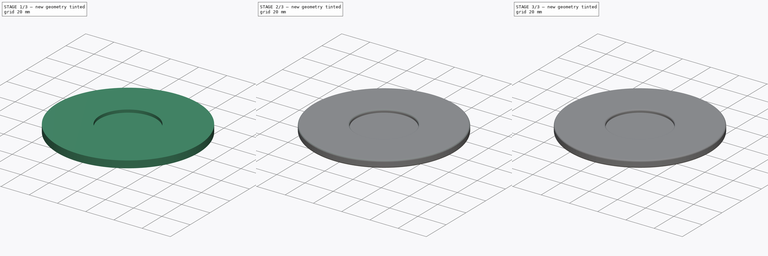
[diagram: build sequence overview — one tinted view per stage of 3, left to right]
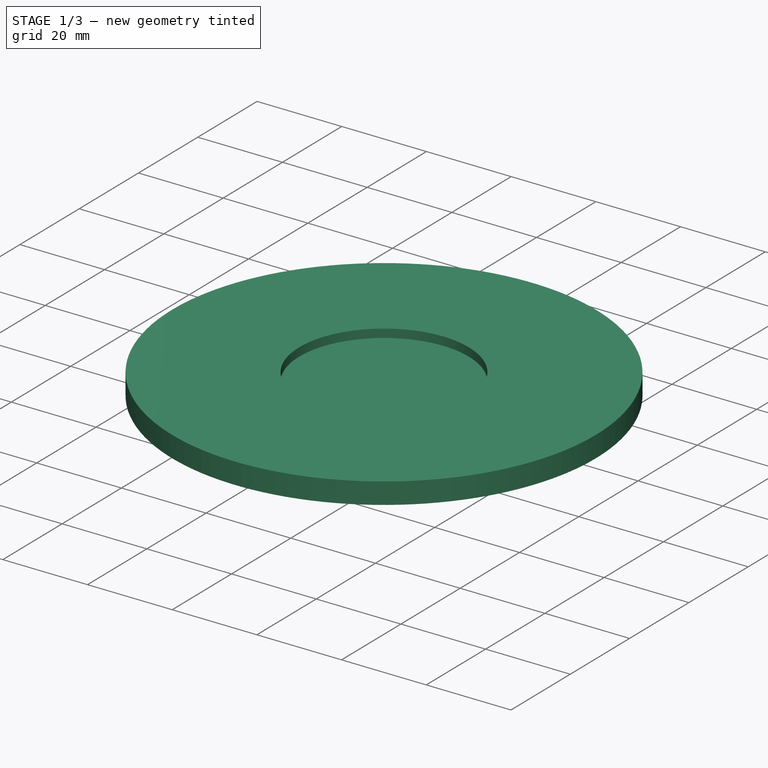
[diagram: stage 1 of 3 — iso view after this stage's code; geometry added in this stage tinted green]
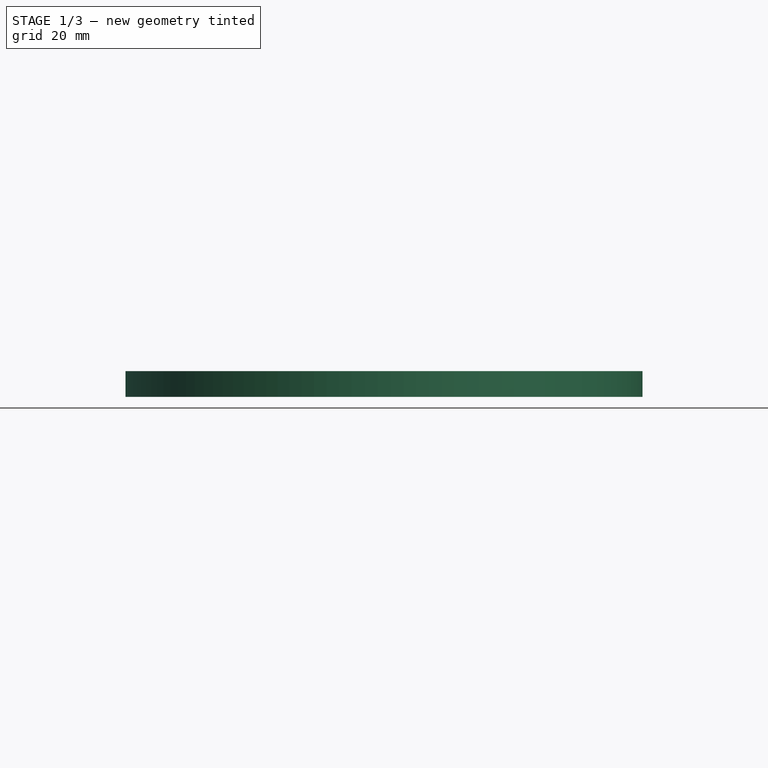
[diagram: stage 1 of 3 — front view after this stage's code; geometry added in this stage tinted green]
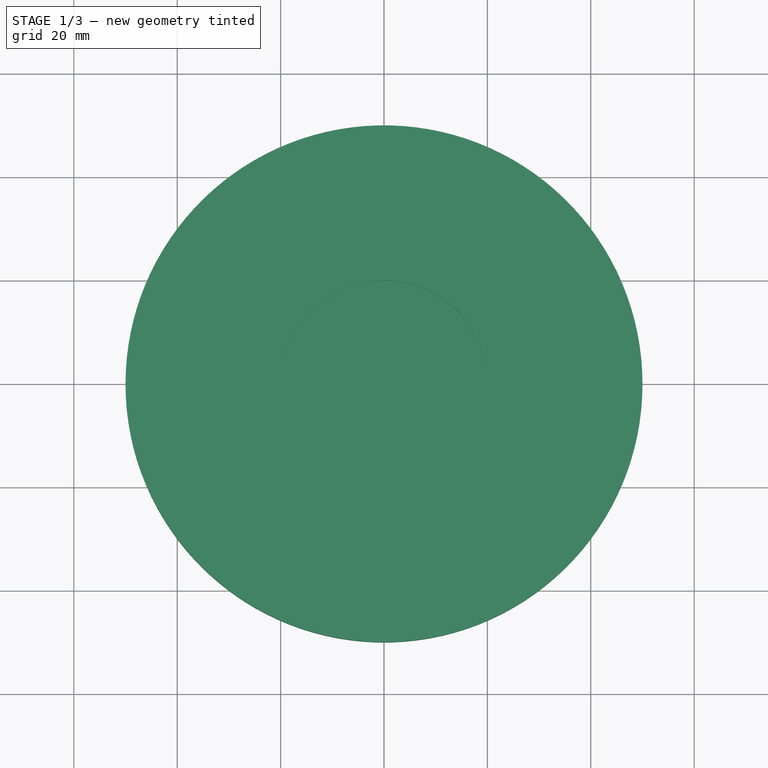
[diagram: stage 1 of 3 — top view after this stage's code; geometry added in this stage tinted green]
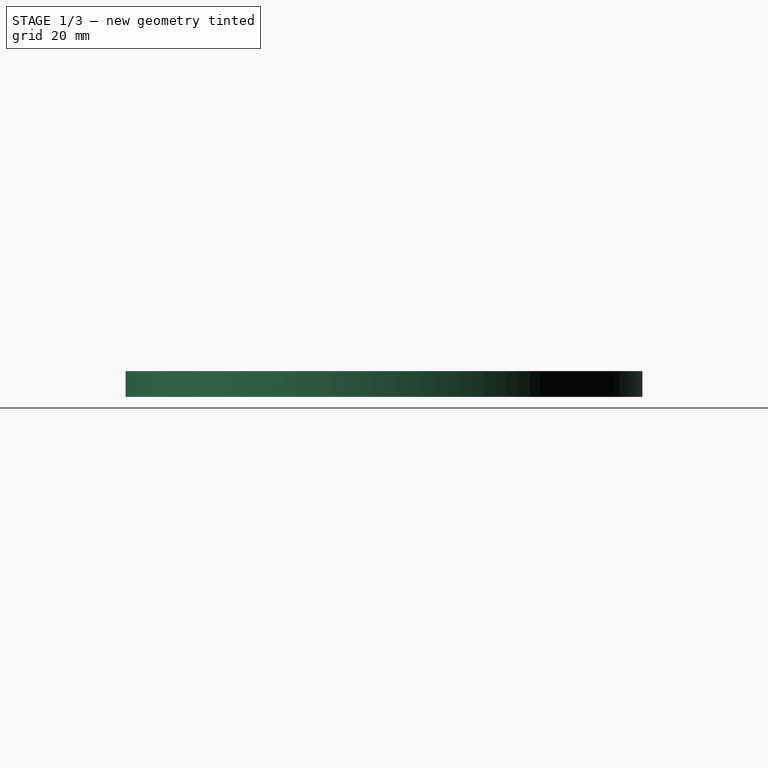
[diagram: stage 1 of 3 — right view after this stage's code; geometry added in this stage tinted green]
FCSTD DOCUMENT  (FreeCAD 0.19R24267 +148 (Git))
Label: poker_chips
License: All rights reserved
LicenseURL: http://en.wikipedia.org/wiki/All_rights_reserved
objects: Sketcher::SketchObject×4, PartDesign::Pocket×3, PartDesign::Fillet×3, Spreadsheet::Sheet×1, PartDesign::Pad×1, PartDesign::PolarPattern×1, PartDesign::Body×1
note: 20 computed .brp shape members not serialized (recipe doc carries the construction recipe); baked Part::Feature solids carry a one-line shape summary decoded from their .brp

FEATURE [Sketcher::SketchObject] Sketch
  FullyConstrained = true
  MapMode = 5
  Support = -> [XY_Plane]
  expr: Constraints[1] = <<DesignParameters>>.chip_diameter
  sketch-geometry (1):
    g0: Circle CenterX=0 CenterY=0 CenterZ=0 NormalX=0 NormalY=0 NormalZ=1 AngleXU=0 Radius=50
  constraints (2):
    c: Coincident(g0,g-1)
    c: Radius(g0) = 50
FEATURE [Spreadsheet::Sheet] Spreadsheet  label="DesignParameters"
  cells = A2=Diameter; B2(chip_diameter)=50; A3=Lenght; B3(chip_length)=5; A4=InnerDiameter; B4(chip_inner_diameter)=20
FEATURE [PartDesign::Pad] Pad
  Direction = (1,1,1)
  Length = 5
  Length2 = 100
  Profile = -> Sketch
  Type = 0
  expr: Length = <<DesignParameters>>.chip_length
FEATURE [Sketcher::SketchObject] Sketch001
  FullyConstrained = true
  MapMode = 5
  Placement = pos=(0,0,5) rot=(0,0,1;0rad)
  Support = -> [Pad]
  expr: Constraints[1] = <<DesignParameters>>.chip_inner_diameter
  sketch-geometry (1):
    g0: Circle CenterX=0 CenterY=0 CenterZ=0 NormalX=0 NormalY=0 NormalZ=1 AngleXU=0 Radius=20
  constraints (2):
    c: Coincident(g0,g-1)
    c: Radius(g0) = 20
FEATURE [PartDesign::Pocket] Pocket  label="HoleFront"
  BaseFeature = -> Pad
  Length = 2
  Length2 = 100
  Profile = -> Sketch001
  Type = 0
FEATURE [Sketcher::SketchObject] Sketch002
  FullyConstrained = true
  MapMode = 5
  Placement = pos=(0,0,0) rot=(1,0,0;3.14159rad)
  Support = -> [Pocket]
  expr: Constraints[1] = <<DesignParameters>>.chip_inner_diameter
  sketch-geometry (1):
    g0: Circle CenterX=0 CenterY=0 CenterZ=0 NormalX=0 NormalY=0 NormalZ=1 AngleXU=0 Radius=20
  constraints (2):
    c: Coincident(g0,g-1)
    c: Radius(g0) = 20
FEATURE [PartDesign::Pocket] Pocket001  label="HoleBack"
  BaseFeature = -> Pocket
  Length = 2
  Length2 = 100
  Profile = -> Sketch002
  Type = 0
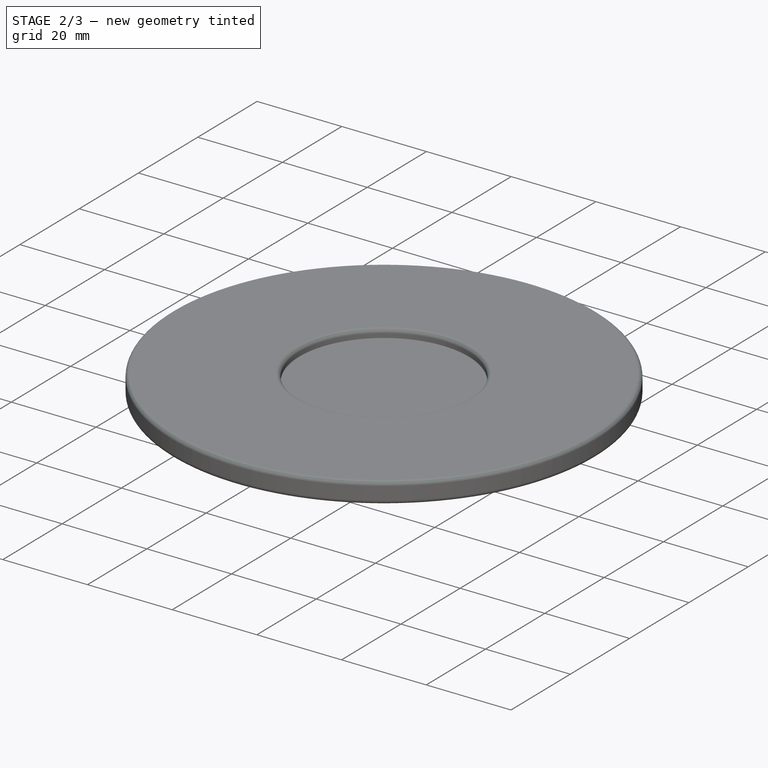
[diagram: stage 2 of 3 — iso view after this stage's code; geometry added in this stage tinted green]
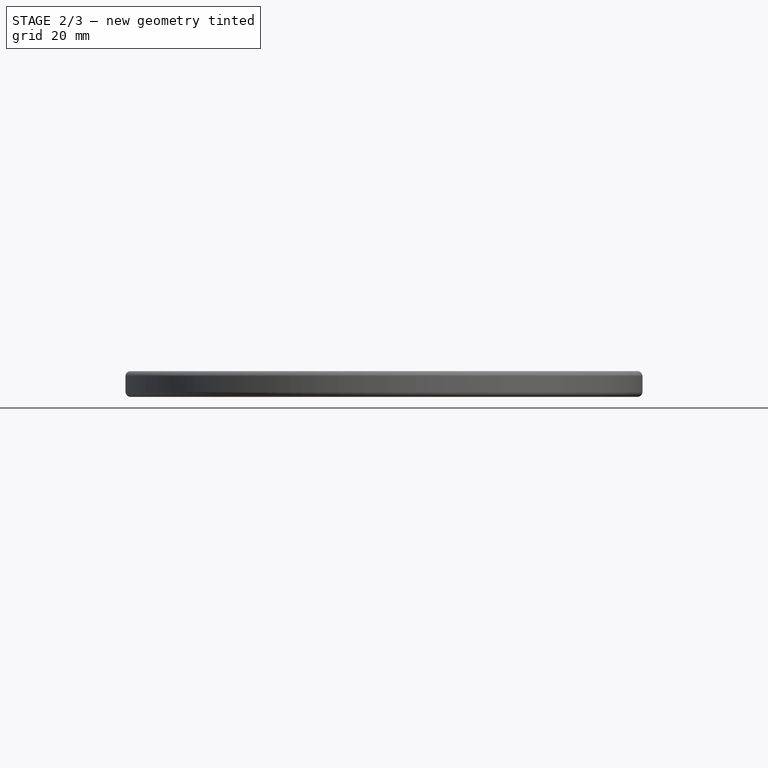
[diagram: stage 2 of 3 — front view after this stage's code; geometry added in this stage tinted green]
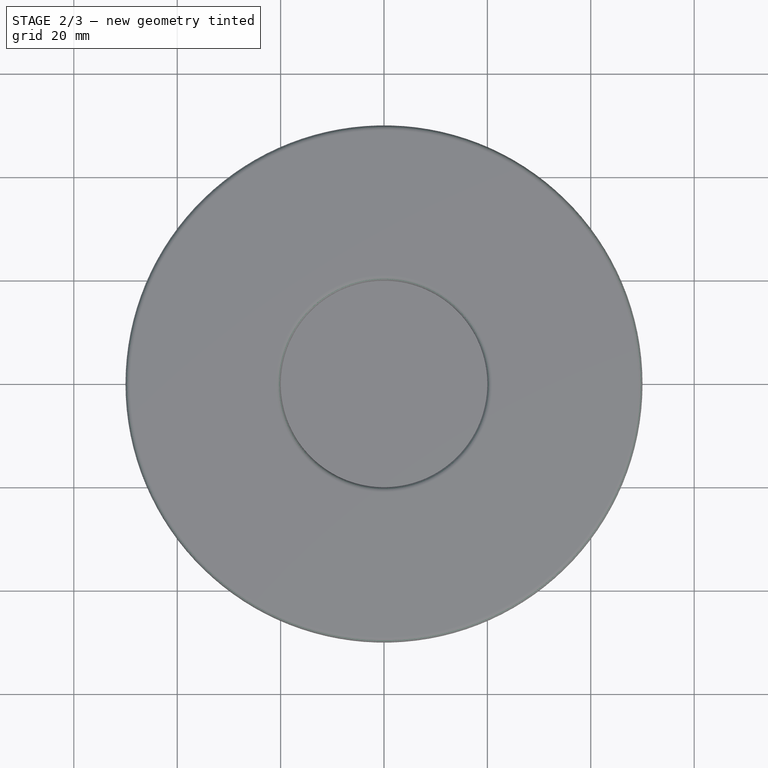
[diagram: stage 2 of 3 — top view after this stage's code; geometry added in this stage tinted green]
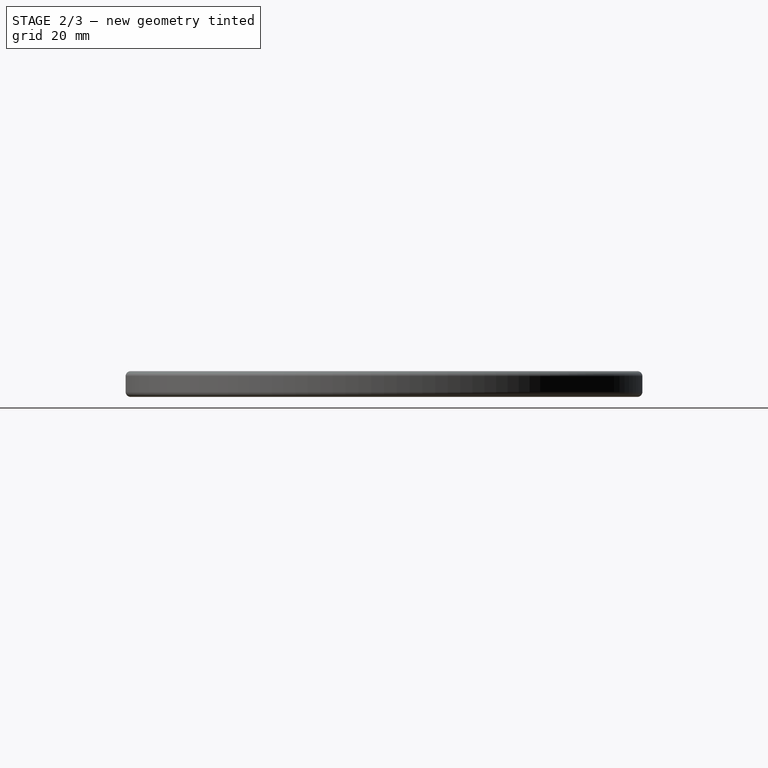
[diagram: stage 2 of 3 — right view after this stage's code; geometry added in this stage tinted green]
FEATURE [PartDesign::Fillet] Fillet  label="Round2"
  Base = -> Pocket001 [Edge2,Edge3]
  BaseFeature = -> Pocket001
  Radius = 1
  SupportTransform = false
FEATURE [PartDesign::Fillet] Fillet001  label="Round"
  Base = -> Fillet [Edge8,Edge9]
  BaseFeature = -> Fillet
  Radius = 1
  SupportTransform = false
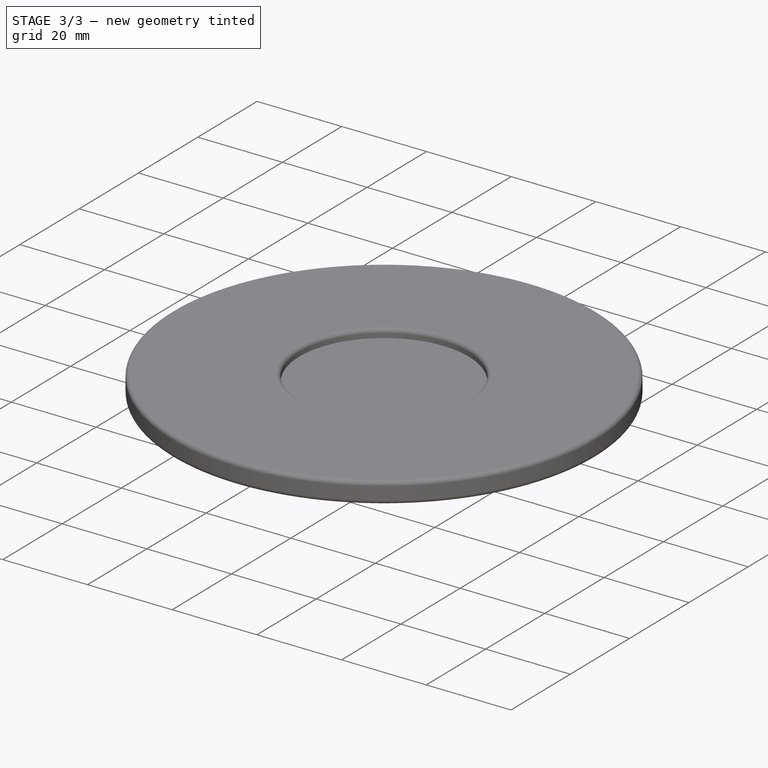
[diagram: stage 3 of 3 — iso view after this stage's code; geometry added in this stage tinted green]
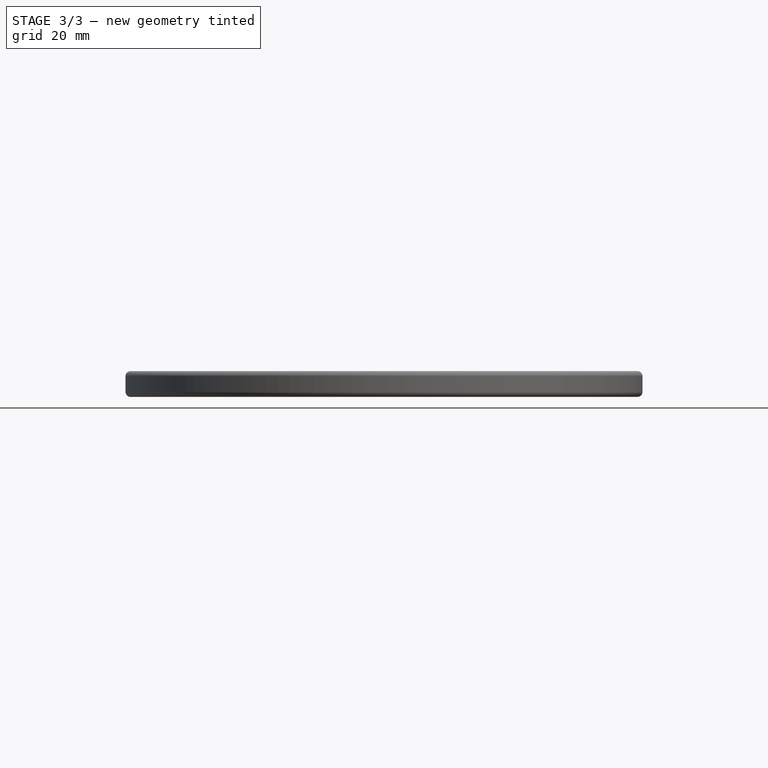
[diagram: stage 3 of 3 — front view after this stage's code; geometry added in this stage tinted green]
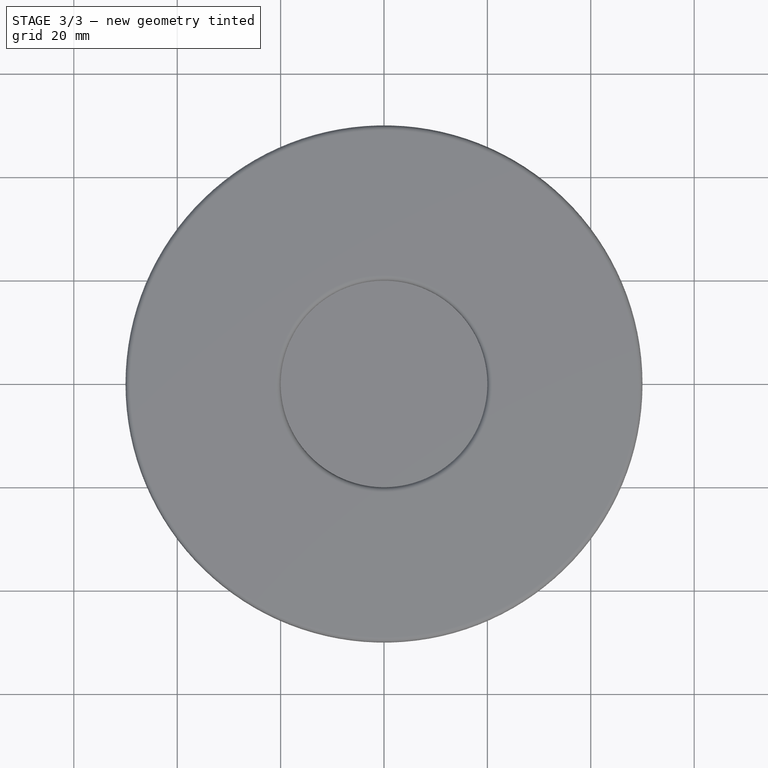
[diagram: stage 3 of 3 — top view after this stage's code; geometry added in this stage tinted green]
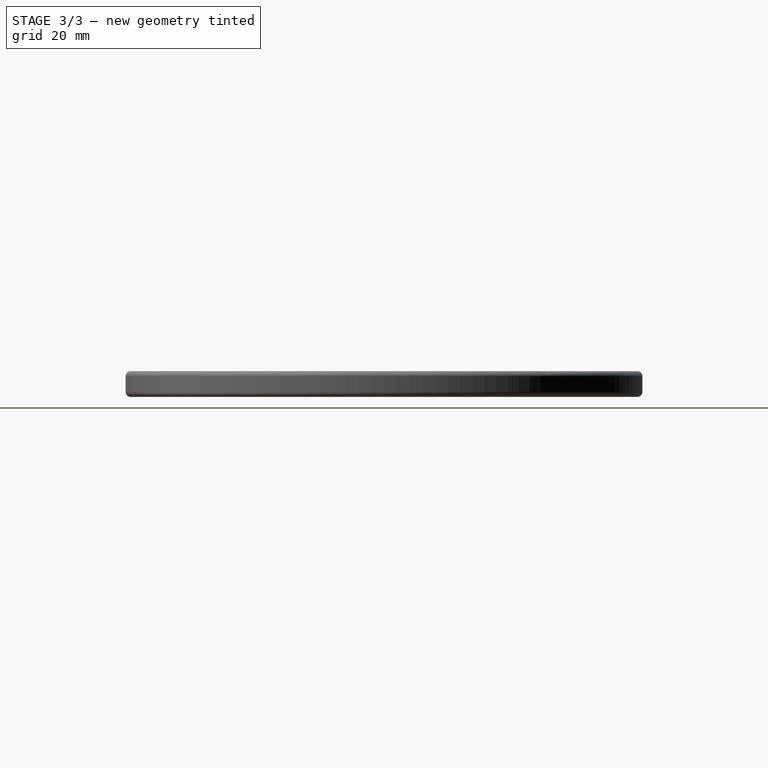
[diagram: stage 3 of 3 — right view after this stage's code; geometry added in this stage tinted green]
FEATURE [Sketcher::SketchObject] Sketch003
  FullyConstrained = false
  MapMode = 5
  Placement = pos=(0,0,0) rot=(1,0,0;3.14159rad)
  Support = -> [Fillet001]
  sketch-geometry (4):
    g0: ArcOfCircle CenterX=0 CenterY=0 CenterZ=0 NormalX=0 NormalY=0 NormalZ=1 AngleXU=0 Radius=44.8924 StartAngle=0.838741 EndAngle=1.30009
    g1: ArcOfCircle CenterX=0 CenterY=0 CenterZ=0 NormalX=0 NormalY=0 NormalZ=1 AngleXU=0 Radius=26.9316 StartAngle=0.925301 EndAngle=1.24758
    g2: LineSegment StartX=8.55397 StartY=25.5371 StartZ=0 EndX=12.0048 EndY=43.2575 EndZ=0
    g3: LineSegment StartX=16.2019 StartY=21.513 StartZ=0 EndX=30.0061 EndY=33.391 EndZ=0
  constraints (6):
    c: Coincident(g0,g-1)
    c: Coincident(g1,g0)
    c: Coincident(g2,g1)
    c: Coincident(g2,g0)
    c: Coincident(g3,g1)
    c: Coincident(g3,g0)
FEATURE [PartDesign::Pocket] Pocket002
  BaseFeature = -> Fillet001
  Length = 1
  Length2 = 100
  Profile = -> Sketch003
  Type = 0
FEATURE [PartDesign::Fillet] Fillet002
  Base = -> Pocket002 [Edge5,Edge3,Edge2,Edge4]
  BaseFeature = -> Pocket002
  Radius = 0.5
  SupportTransform = false
FEATURE [PartDesign::PolarPattern] PolarPattern
  Angle = 360
  Axis = -> Z_Axis
  BaseFeature = -> Fillet002
  Occurrences = 6
  Originals = -> [Fillet002]
FEATURE [PartDesign::Body] Body
  Group = -> [Sketch,Pad,Sketch001,Pocket,Sketch002,Pocket001,Fillet,Fillet001,Sketch003,Pocket002,Fillet002,PolarPattern]
  Origin = -> Origin
  Tip = -> PolarPattern
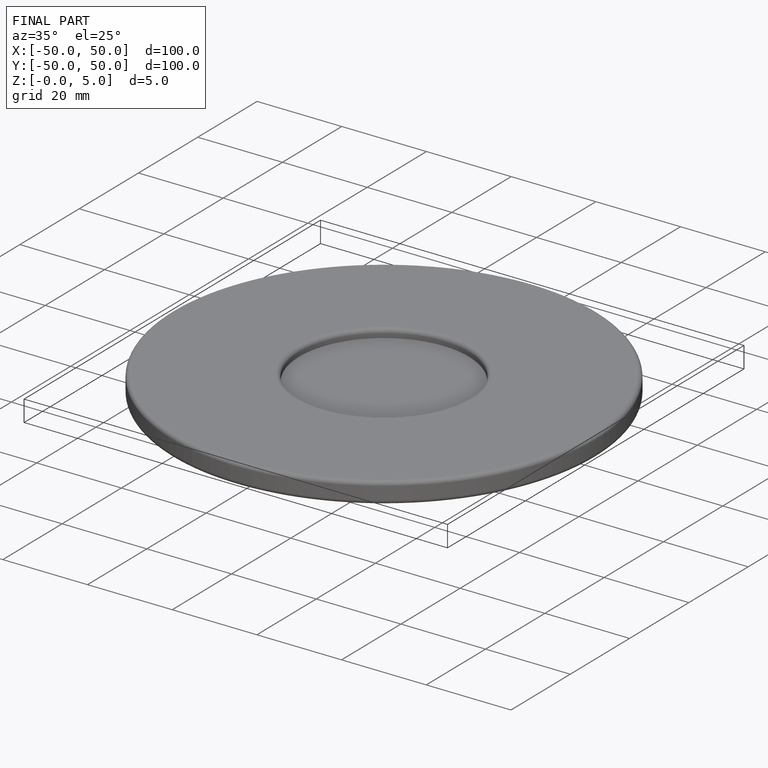
[diagram: finished part — iso view with bounding-box wireframe]
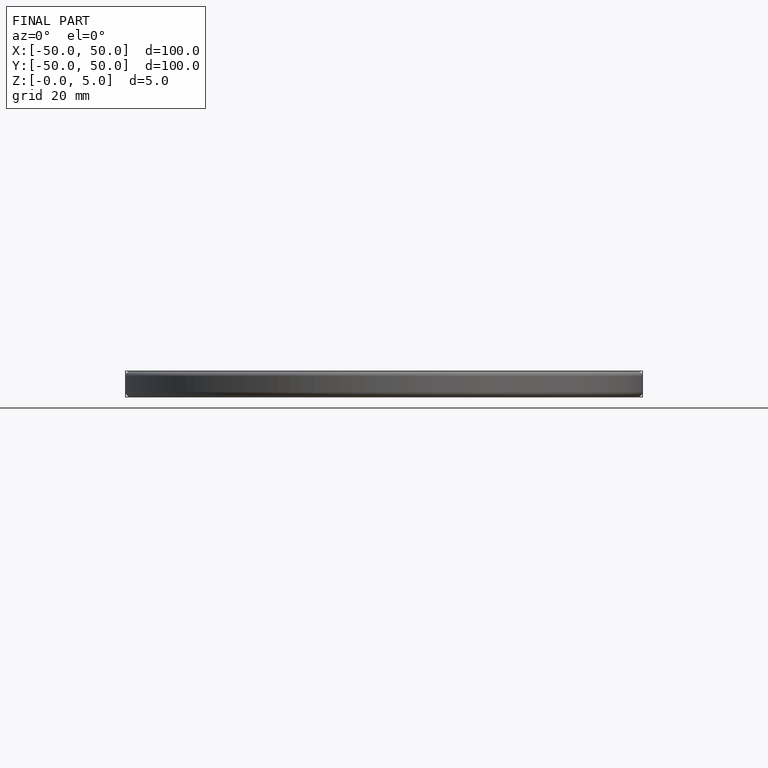
[diagram: finished part — front view with bounding-box wireframe]
